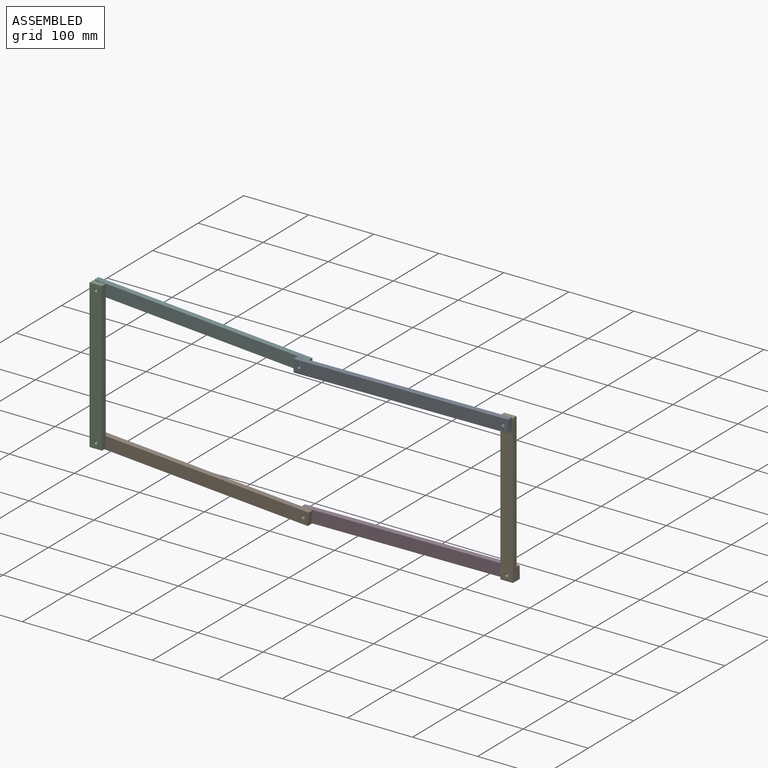
[diagram: assembled view]
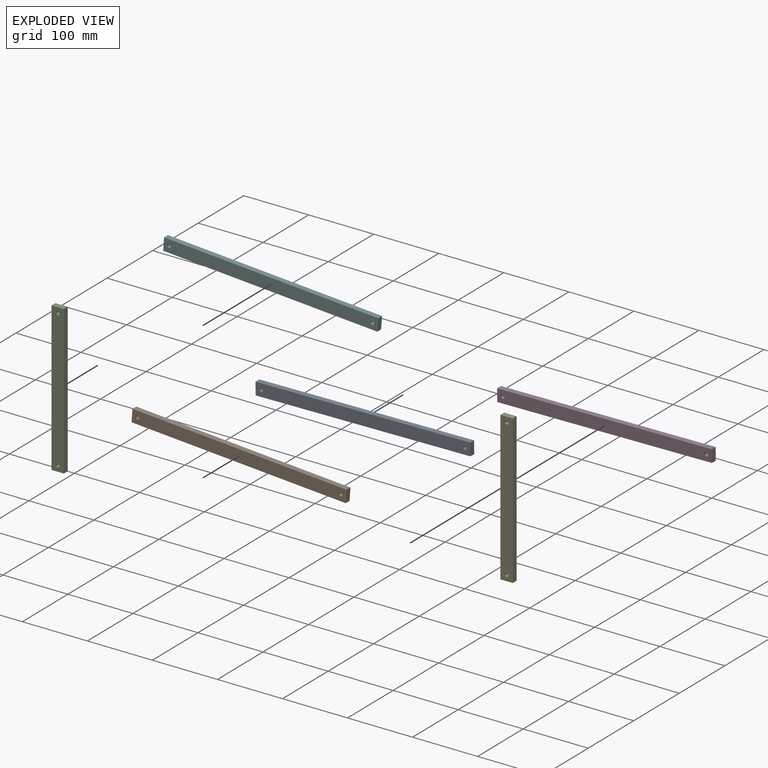
[diagram: exploded view]
GUIDED TOUR — MATED ASSEMBLY (Onshape document 28761810e7ef9c441e927997, AutoMate assembly 28761810e7ef9c441e927997_73a85dd9ed7e7506a6180d0a_4f3e3da0cdc9e46c7e54a4dd_default)

This assembly has 6 components, labeled P0..P5 below (a component is one placed occurrence of a part; the same part can appear more than once), held together by 6 mates. A mate is a constraint between two components; its type names the relative motion it leaves free:
  REVOLUTE — leaves rotation about the listed axis free (a hinge).
Axis/direction vectors are unit vectors and 'through' points are millimeter coordinates, both in the assembly's world frame.

MATES
  1. REVOLUTE "Revolute 5": P3 <-> P1, axis (0.000, -1.000, 0.000) through (-263.79, 29.69, -114.07) mm
  2. REVOLUTE "Revolute 1": P4 <-> P0, axis (0.000, -1.000, 0.000) through (49.63, 21.31, 101.19) mm
  3. REVOLUTE "Revolute 2": P0 <-> P5, axis (0.000, 1.000, 0.000) through (-263.79, 21.31, 97.76) mm
  4. REVOLUTE "Revolute 6": P1 <-> P2, axis (0.000, -1.000, 0.000) through (-576.37, 21.31, -90.92) mm
  5. REVOLUTE "Revolute 3": P5 <-> P2, axis (0.000, -1.000, 0.000) through (-576.37, 21.31, 120.91) mm
  6. REVOLUTE "Revolute 4": P3 <-> P4, axis (0.000, -1.000, 0.000) through (49.63, 29.69, -110.64) mm

ASSEMBLY ORDER
  1. P4 — the base component [order verified]
  2. P0 [order verified]
  3. P2 [order verified]
  4. P5 [order verified]
  5. P1 [order verified]
  6. P3 [order verified]
Order-tag legend:
  [order verified] — this step's position reverses a verified removal order: the component was checked to insert without passing through the ones already placed.

Of the 6 components, 6 carry the full construction recipe — the FeatureScript program that regenerates the part's solid from scratch; the rest are supplied as boundary geometry only.
Each toured component is shown spotlighted twice — in the assembled view, then in the exploded view, where a leader line traces a displaced component back to its assembled socket (saturated green if recipe-attached, orange if geometry-only; every other component desaturated gray) — followed by its recipe or geometry summary and the mates that hold it.
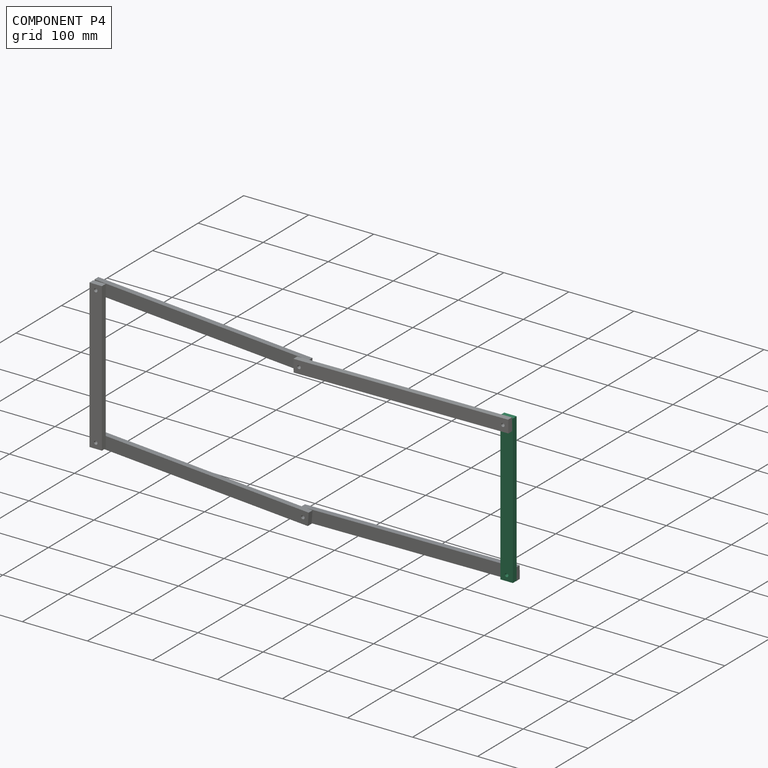
[diagram: component P4 — assembled]
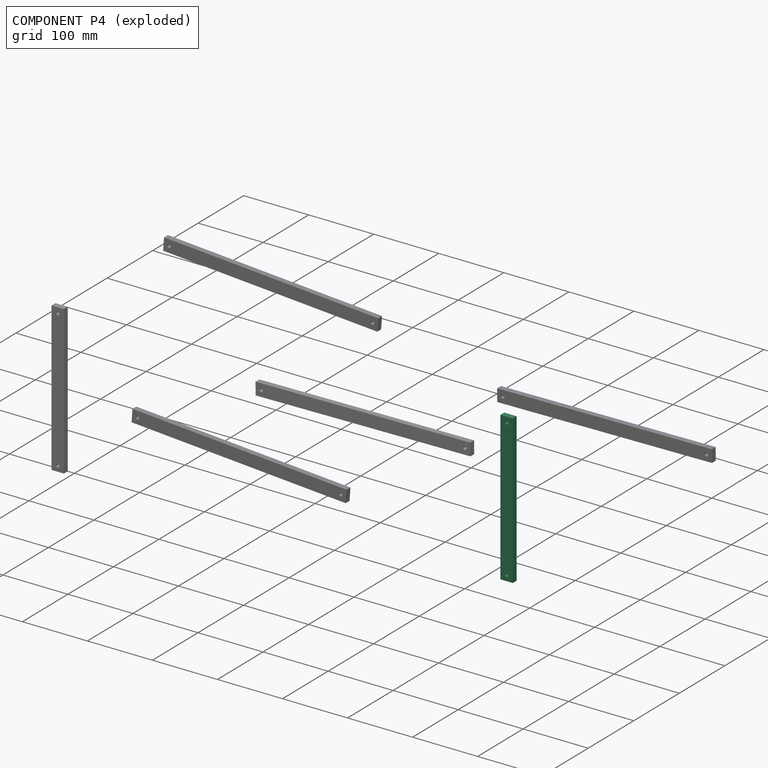
[diagram: component P4 — exploded]
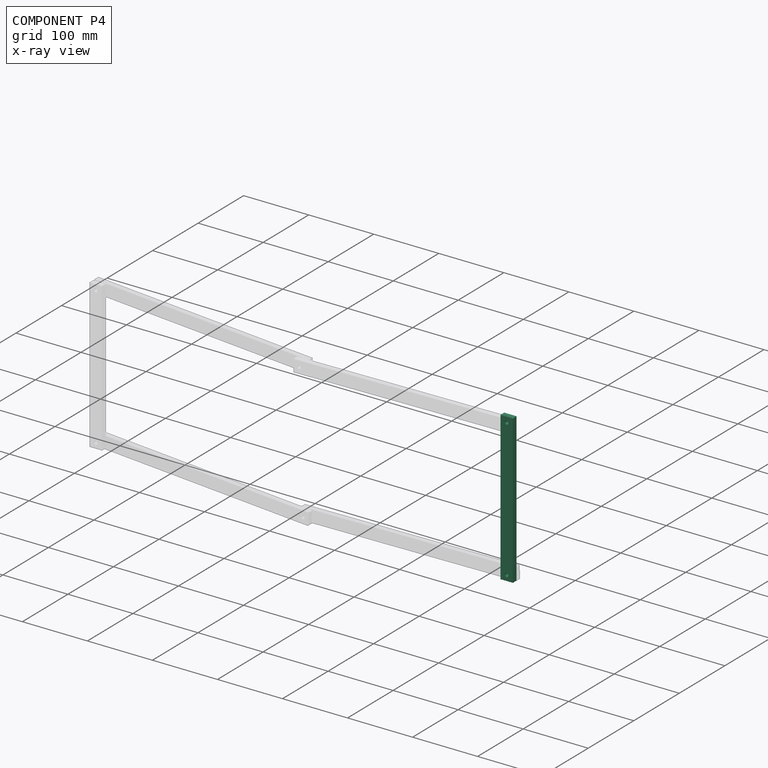
[diagram: component P4 — x-ray view]
COMPONENT P4 — same part as P2 (CADFS 00447792); its construction recipe is shown at P2.
Held by: REVOLUTE mate "Revolute 1" to P0; REVOLUTE mate "Revolute 4" to P3.
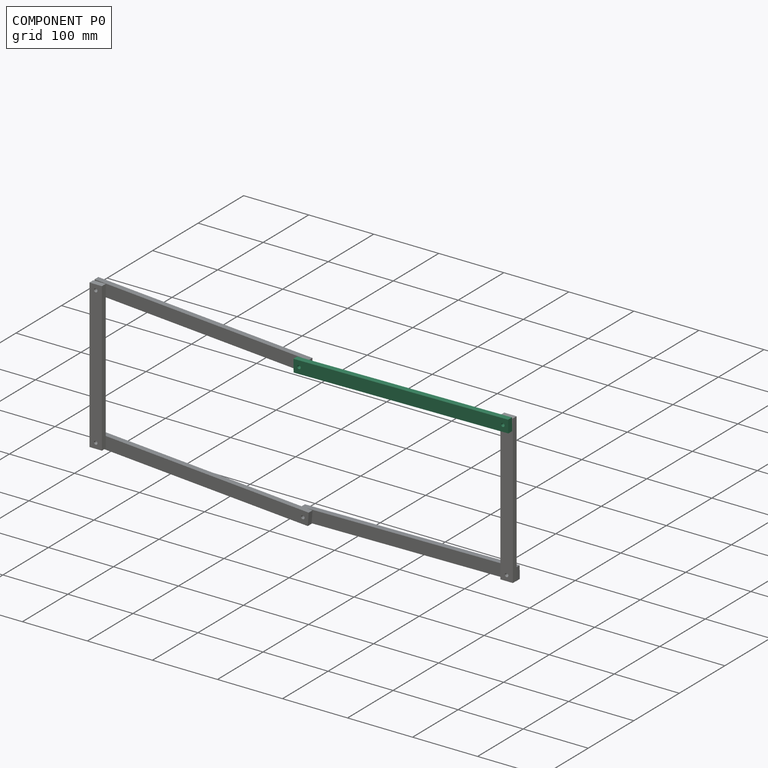
[diagram: component P0 — assembled]
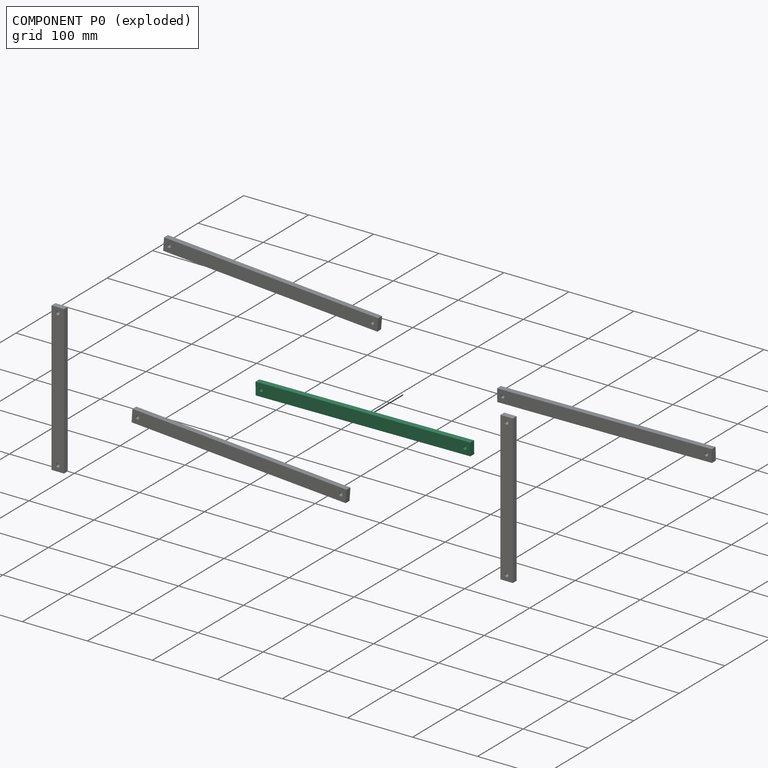
[diagram: component P0 — exploded]
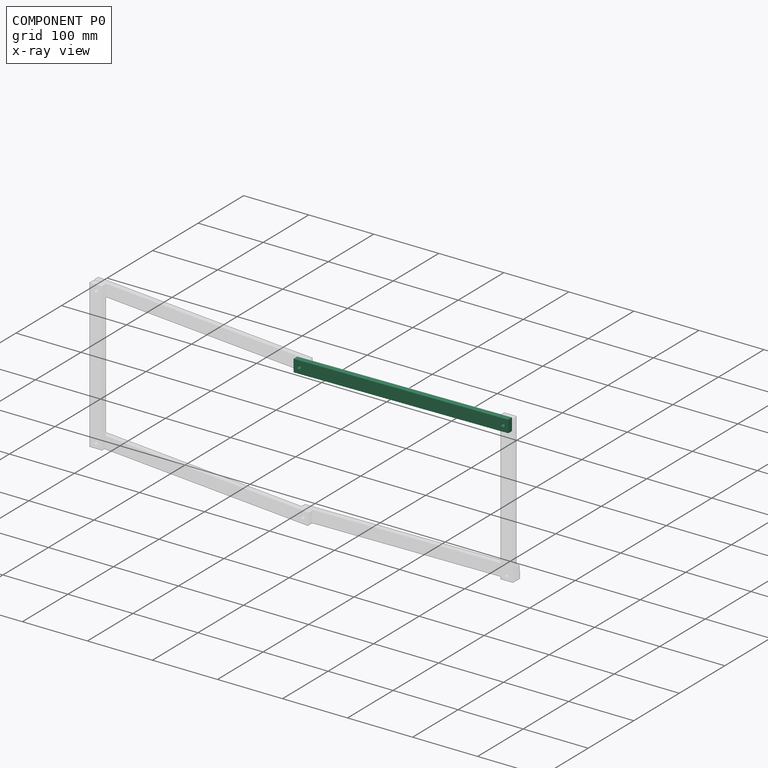
[diagram: component P0 — x-ray view]
COMPONENT P0 — recipe-attached (CADFS 00447789, mesh-verified: the recipe's output STEP matches this component's geometry to below the mesh-comparison resolution (tessellation chordal tolerance ~0.496 mm)).
Held by: REVOLUTE mate "Revolute 1" to P4; REVOLUTE mate "Revolute 2" to P5.
Construction recipe (FeatureScript — the CAD program that rebuilds this solid; sketch coordinates are in the units given by the * unit suffixes, e.g. mm):

FeatureScript 1540;
import(path : "onshape/std/geometry.fs", version : "1540.0");
import(path : "onshape/std/common.fs", version : "1540.0");
const mm = millimeter;
const VERTEX = EntityType.VERTEX;
const EDGE = EntityType.EDGE;
const FACE = EntityType.FACE;
const BODY = EntityType.BODY;
function v(x, y){return vector(x, y);}
function OD(order){return orderDisambiguation(order);}
function OSD(set){return originalSetDisambiguation(set);}
function TD(topology){return topologyDisambiguation(topology);}
function TDD(query){return trueDependencyDisambiguation(query);}
function sQuery(a, b, c) {return sketchEntityQuery(a, b, c);}

annotation { "Feature Type Name" : "Feature", "Feature Type Description" : "" }
export const myFeature = defineFeature(function(context is Context, id is Id, definition is map)
    precondition{}
    {
        {
            var Q0;
            Q0=qCreatedBy(makeId("Front.planeOp"),FACE);
            var sketch = newSketch(context, id + "F0", { "sketchPlane" : qUnion([Q0])});
            skLineSegment(sketch, "E0.bottom", {"start": v(165.1, -9.52) * mm, "end": v(-165.1, -9.52) * mm});
            skLineSegment(sketch, "E0.top", {"start": v(165.1, 9.53) * mm, "end": v(-165.1, 9.53) * mm});
            skLineSegment(sketch, "E0.left", {"start": v(165.1, -9.52) * mm, "end": v(165.1, 9.53) * mm});
            skLineSegment(sketch, "E0.right", {"start": v(-165.1, -9.52) * mm, "end": v(-165.1, 9.53) * mm});
            skPoint(sketch, "E0.middle", {"position": v(0, 0) * mm});
            skPoint(sketch, "E1", {"position": v(-156.72, 0) * mm});
            skPoint(sketch, "E2", {"position": v(156.72, 0) * mm});
            skSolve(sketch);
        }
        {
            var Q0;
            Q0=makeQuery(id+"F0.imprint","IMPRINT",FACE,{"disambiguationData":[TD([[makeQuery(id+"F0.imprint","IMPRINT",EDGE,{"derivedFrom":sQuery(id+"F0.wireOp",EDGE,"E0.bottom")}),-1.0]])]});
            extrude(context, id + "F1", {"entities" : qUnion([Q0]), "depth" : 8.38 * mm, "symmetric" : true});
        }
        {
            var Q0;
            Q0=sQuery(id+"F0.wireOp",VERTEX,"E1");
            var Q1;
            Q1=sQuery(id+"F0.wireOp",VERTEX,"E2");
            var Q2;
            Q2=makeQuery(id+"F1.opExtrude","SWEPT_BODY",BODY,{"disambiguationData":[OSD([sQuery(id+"F0.wireOp",EDGE,"E0.bottom"),sQuery(id+"F0.wireOp",EDGE,"E0.top"),sQuery(id+"F0.wireOp",EDGE,"E0.left"),sQuery(id+"F0.wireOp",EDGE,"E0.right")])]});
            hole(context, id + "F2", {"style" : HoleStyle.SIMPLE, "endStyle" : HoleEndStyle.THROUGH, "standardTappedOrClearance" : lookupTablePath({ "standard" : "ANSI", "size" : "#4 (0.2)", "type" : "Drilled" }), "standardBlindInLast" : lookupTablePath({ "standard" : "ANSI", "size" : "#4", "type" : "Drilled" }), "holeDiameter" : 5.3 * mm, "isTappedThrough" : true, "tappedDepth" : 12.7 * mm, "tapClearance" : 3, "startFromSketch" : true, "locations" : qUnion([Q0, Q1]), "scope" : qUnion([Q2])});
        }
        {
            var Q0;
            Q0=sQuery(id+"F0.wireOp",VERTEX,"E1");
            var Q1;
            Q1=sQuery(id+"F0.wireOp",VERTEX,"E2");
            var Q2;
            Q2=makeQuery(id+"F1.opExtrude","SWEPT_BODY",BODY,{"disambiguationData":[OSD([sQuery(id+"F0.wireOp",EDGE,"E0.bottom"),sQuery(id+"F0.wireOp",EDGE,"E0.top"),sQuery(id+"F0.wireOp",EDGE,"E0.left"),sQuery(id+"F0.wireOp",EDGE,"E0.right")])]});
            hole(context, id + "F3", {"style" : HoleStyle.SIMPLE, "endStyle" : HoleEndStyle.THROUGH, "oppositeDirection" : true, "standardTappedOrClearance" : lookupTablePath({ "standard" : "ANSI", "size" : "#4 (0.2)", "type" : "Drilled" }), "standardBlindInLast" : lookupTablePath({ "standard" : "ANSI", "size" : "#4", "type" : "Drilled" }), "holeDiameter" : 5.3 * mm, "isTappedThrough" : true, "tappedDepth" : 12.7 * mm, "tapClearance" : 3, "startFromSketch" : true, "locations" : qUnion([Q0, Q1]), "scope" : qUnion([Q2])});
        }
    });
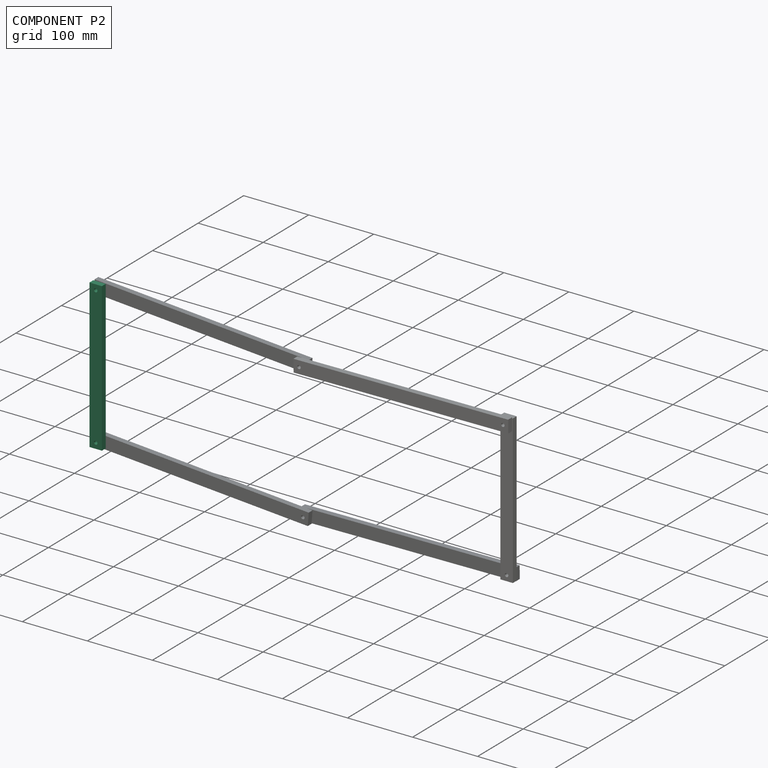
[diagram: component P2 — assembled]
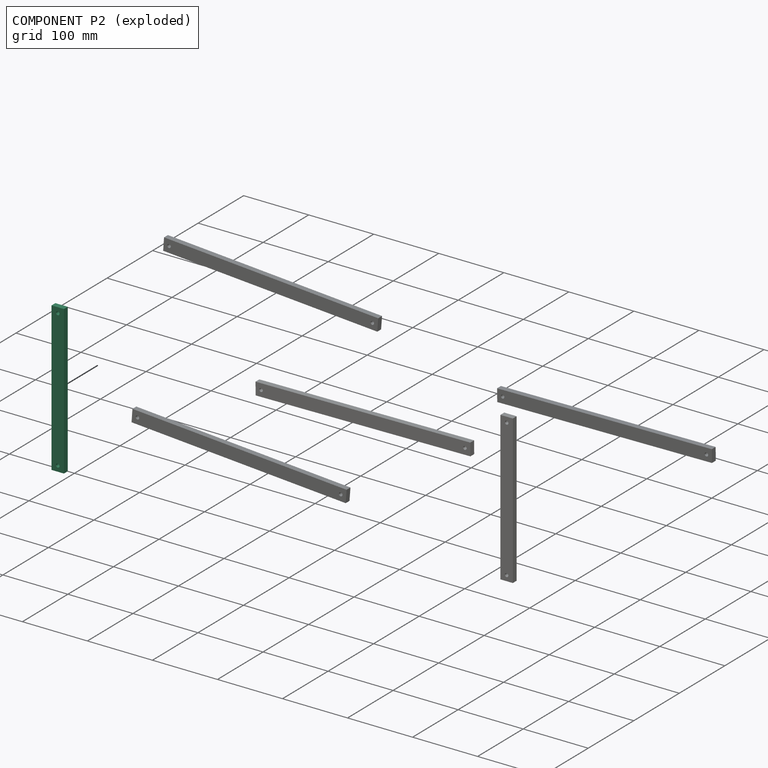
[diagram: component P2 — exploded]
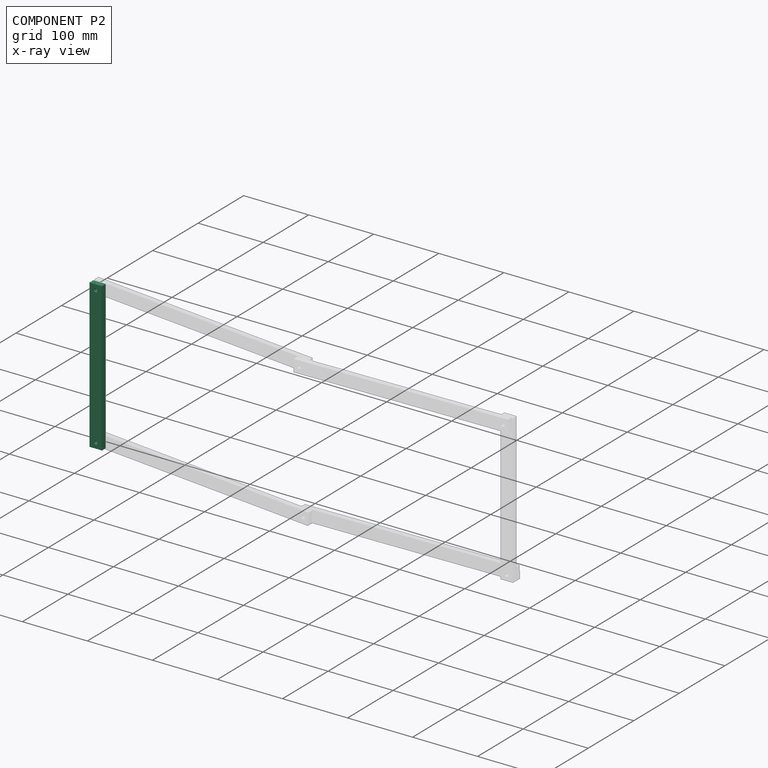
[diagram: component P2 — x-ray view]
COMPONENT P2 — recipe-attached (CADFS 00447792, mesh-verified: the recipe's output STEP matches this component's geometry to below the mesh-comparison resolution (tessellation chordal tolerance ~0.344 mm)).
Held by: REVOLUTE mate "Revolute 6" to P1; REVOLUTE mate "Revolute 3" to P5.
Construction recipe (FeatureScript — the CAD program that rebuilds this solid; sketch coordinates are in the units given by the * unit suffixes, e.g. mm):

FeatureScript 1540;
import(path : "onshape/std/geometry.fs", version : "1540.0");
import(path : "onshape/std/common.fs", version : "1540.0");
const mm = millimeter;
const VERTEX = EntityType.VERTEX;
const EDGE = EntityType.EDGE;
const FACE = EntityType.FACE;
const BODY = EntityType.BODY;
function v(x, y){return vector(x, y);}
function OD(order){return orderDisambiguation(order);}
function OSD(set){return originalSetDisambiguation(set);}
function TD(topology){return topologyDisambiguation(topology);}
function TDD(query){return trueDependencyDisambiguation(query);}
function sQuery(a, b, c) {return sketchEntityQuery(a, b, c);}

annotation { "Feature Type Name" : "Feature", "Feature Type Description" : "" }
export const myFeature = defineFeature(function(context is Context, id is Id, definition is map)
    precondition{}
    {
        {
            var Q0;
            Q0=qCreatedBy(makeId("Front.planeOp"),FACE);
            var sketch = newSketch(context, id + "F0", { "sketchPlane" : qUnion([Q0])});
            skLineSegment(sketch, "E0.bottom", {"start": v(9.52, 114.3) * mm, "end": v(-9.53, 114.3) * mm});
            skLineSegment(sketch, "E0.top", {"start": v(9.53, -114.3) * mm, "end": v(-9.52, -114.3) * mm});
            skLineSegment(sketch, "E0.left", {"start": v(9.52, 114.3) * mm, "end": v(9.53, -114.3) * mm});
            skLineSegment(sketch, "E0.right", {"start": v(-9.53, 114.3) * mm, "end": v(-9.52, -114.3) * mm});
            skPoint(sketch, "E0.middle", {"position": v(0, 0) * mm});
            skPoint(sketch, "E1", {"position": v(0, 105.92) * mm});
            skPoint(sketch, "E2", {"position": v(0, -105.92) * mm});
            skSolve(sketch);
        }
        {
            var Q0;
            Q0=makeQuery(id+"F0.imprint","IMPRINT",FACE,{"disambiguationData":[TD([[makeQuery(id+"F0.imprint","IMPRINT",EDGE,{"derivedFrom":sQuery(id+"F0.wireOp",EDGE,"E0.bottom")}),1.0]])]});
            extrude(context, id + "F1", {"entities" : qUnion([Q0]), "depth" : 8.38 * mm, "symmetric" : true});
        }
        {
            var Q0;
            Q0=sQuery(id+"F0.wireOp",VERTEX,"E1");
            var Q1;
            Q1=sQuery(id+"F0.wireOp",VERTEX,"E2");
            var Q2;
            Q2=makeQuery(id+"F1.opExtrude","SWEPT_BODY",BODY,{"disambiguationData":[OSD([sQuery(id+"F0.wireOp",EDGE,"E0.bottom"),sQuery(id+"F0.wireOp",EDGE,"E0.top"),sQuery(id+"F0.wireOp",EDGE,"E0.left"),sQuery(id+"F0.wireOp",EDGE,"E0.right")])]});
            hole(context, id + "F2", {"style" : HoleStyle.SIMPLE, "endStyle" : HoleEndStyle.THROUGH, "standardTappedOrClearance" : lookupTablePath({ "standard" : "ANSI", "size" : "#4 (0.2)", "type" : "Drilled" }), "standardBlindInLast" : lookupTablePath({ "standard" : "ANSI", "size" : "#4", "type" : "Drilled" }), "holeDiameter" : 5.3 * mm, "isTappedThrough" : true, "tappedDepth" : 12.7 * mm, "tapClearance" : 3, "startFromSketch" : true, "locations" : qUnion([Q0, Q1]), "scope" : qUnion([Q2])});
        }
        {
            var Q0;
            Q0=sQuery(id+"F0.wireOp",VERTEX,"E1");
            var Q1;
            Q1=sQuery(id+"F0.wireOp",VERTEX,"E2");
            var Q2;
            Q2=makeQuery(id+"F1.opExtrude","SWEPT_BODY",BODY,{"disambiguationData":[OSD([sQuery(id+"F0.wireOp",EDGE,"E0.bottom"),sQuery(id+"F0.wireOp",EDGE,"E0.top"),sQuery(id+"F0.wireOp",EDGE,"E0.left"),sQuery(id+"F0.wireOp",EDGE,"E0.right")])]});
            hole(context, id + "F3", {"style" : HoleStyle.SIMPLE, "endStyle" : HoleEndStyle.THROUGH, "oppositeDirection" : true, "standardTappedOrClearance" : lookupTablePath({ "standard" : "ANSI", "size" : "#4 (0.2)", "type" : "Drilled" }), "standardBlindInLast" : lookupTablePath({ "standard" : "ANSI", "size" : "#4", "type" : "Drilled" }), "holeDiameter" : 5.3 * mm, "isTappedThrough" : true, "tappedDepth" : 12.7 * mm, "tapClearance" : 3, "startFromSketch" : true, "locations" : qUnion([Q0, Q1]), "scope" : qUnion([Q2])});
        }
    });
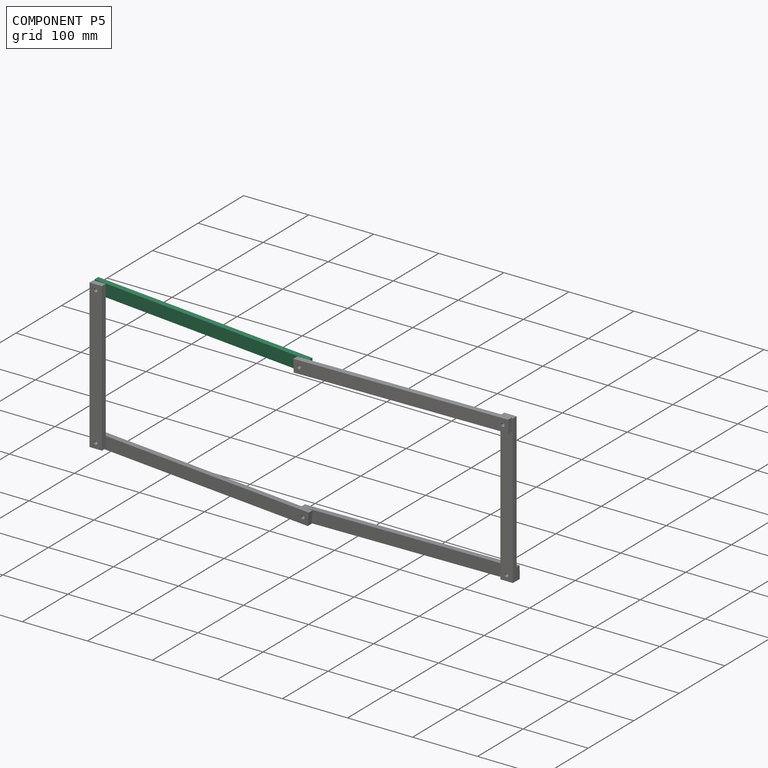
[diagram: component P5 — assembled]
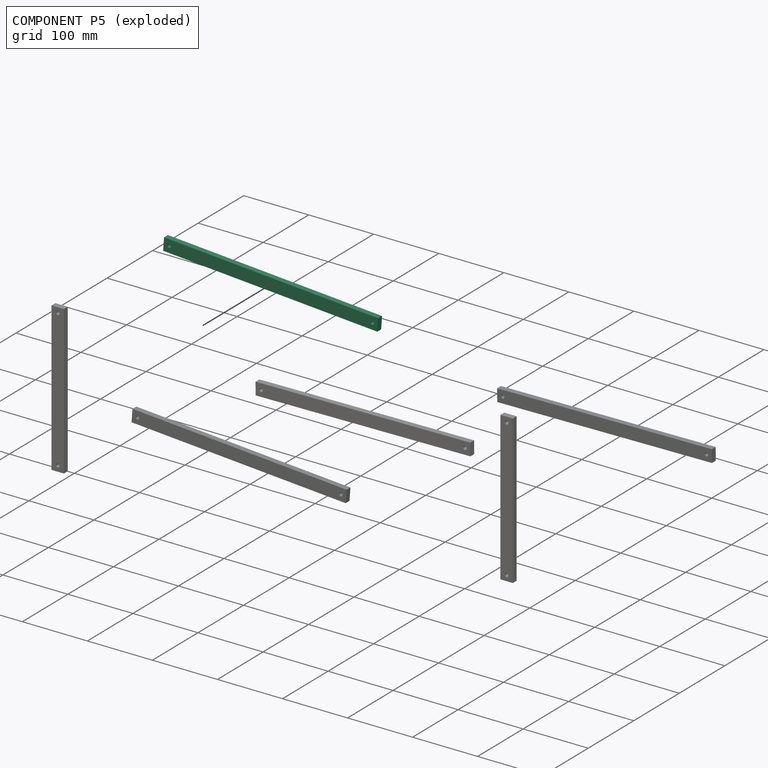
[diagram: component P5 — exploded]
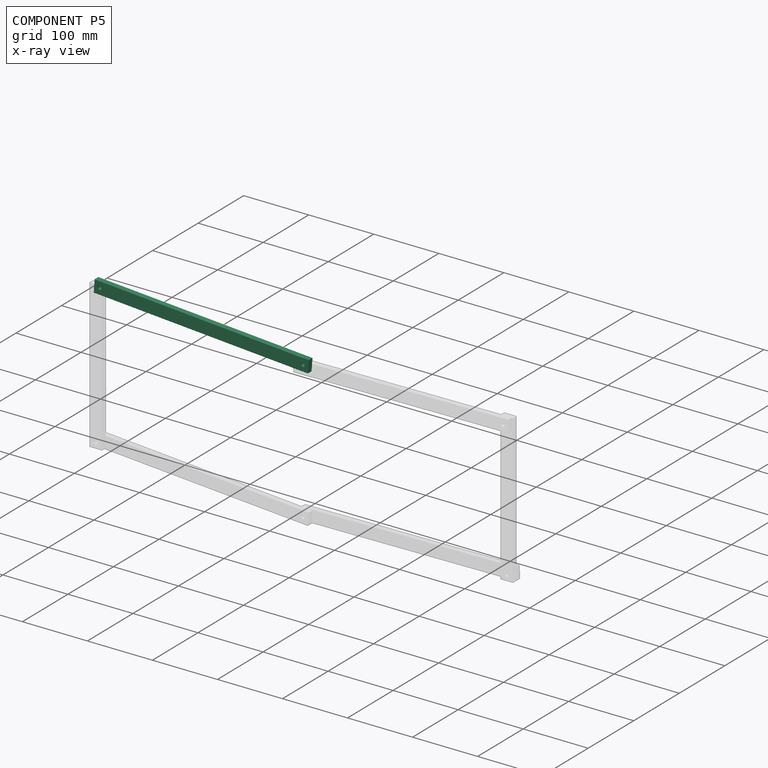
[diagram: component P5 — x-ray view]
COMPONENT P5 — same part as P0 (CADFS 00447789); its construction recipe is shown at P0.
Held by: REVOLUTE mate "Revolute 2" to P0; REVOLUTE mate "Revolute 3" to P2.
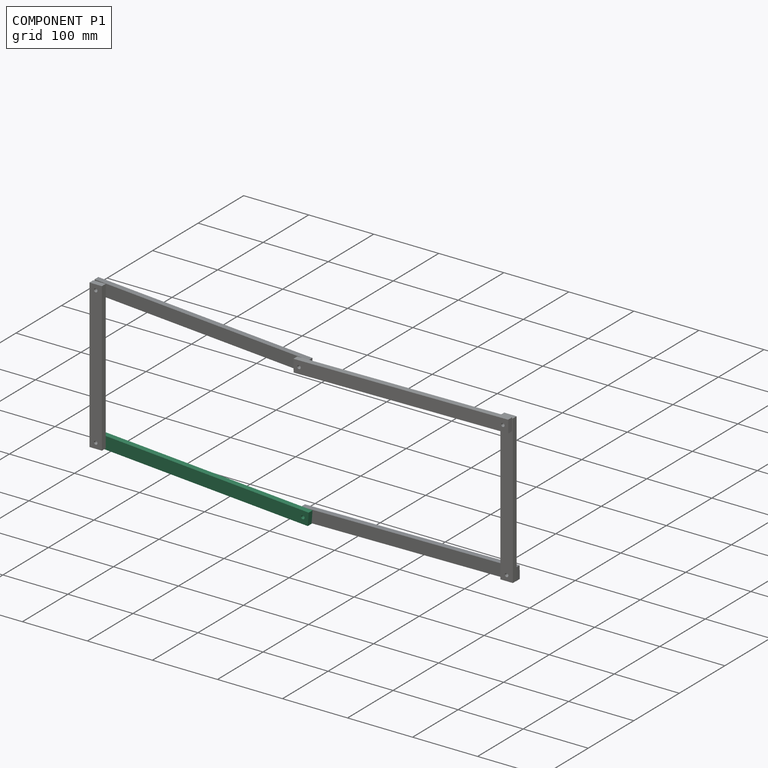
[diagram: component P1 — assembled]
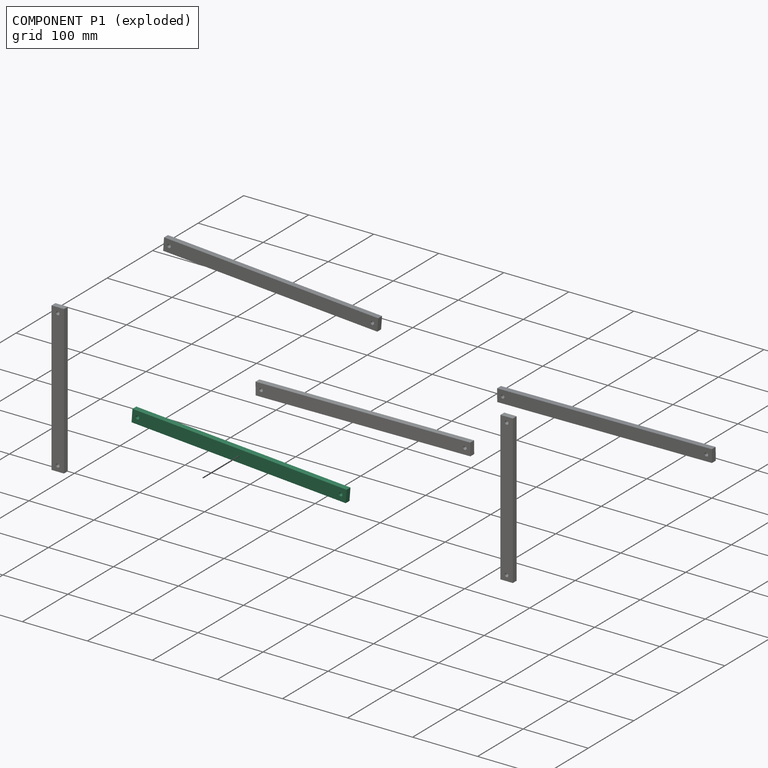
[diagram: component P1 — exploded]
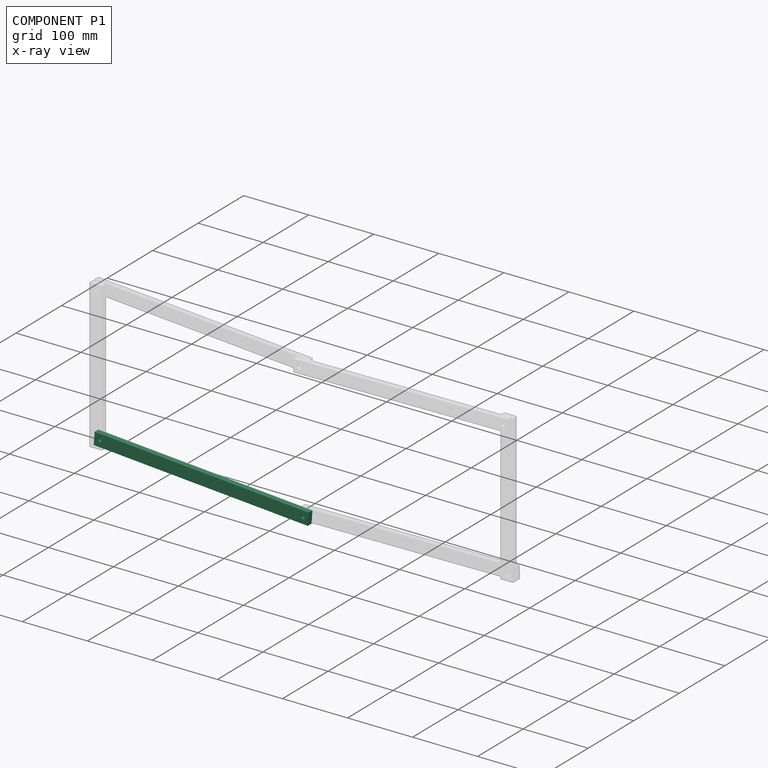
[diagram: component P1 — x-ray view]
COMPONENT P1 — same part as P0 (CADFS 00447789); its construction recipe is shown at P0.
Held by: REVOLUTE mate "Revolute 5" to P3; REVOLUTE mate "Revolute 6" to P2.
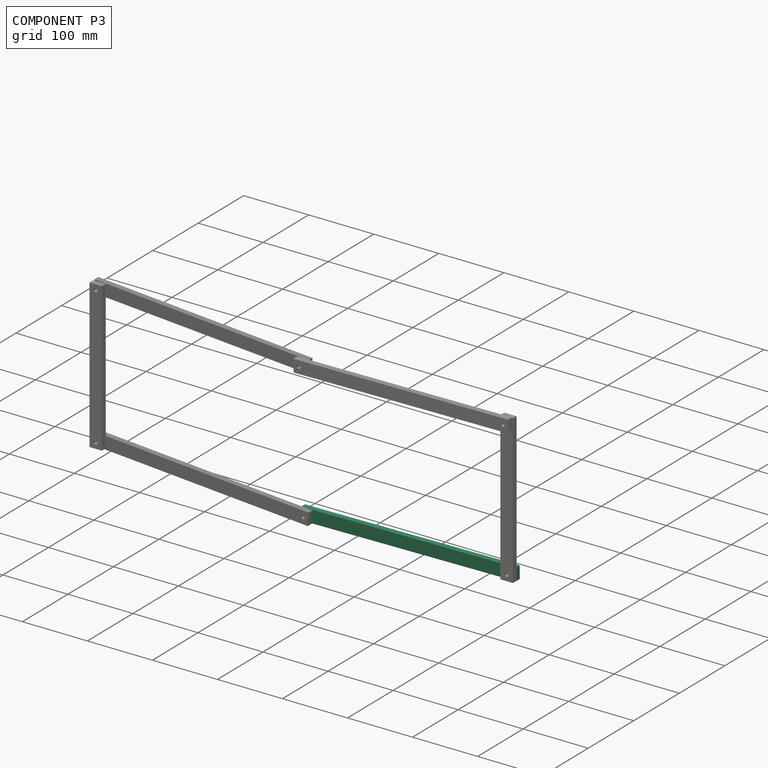
[diagram: component P3 — assembled]
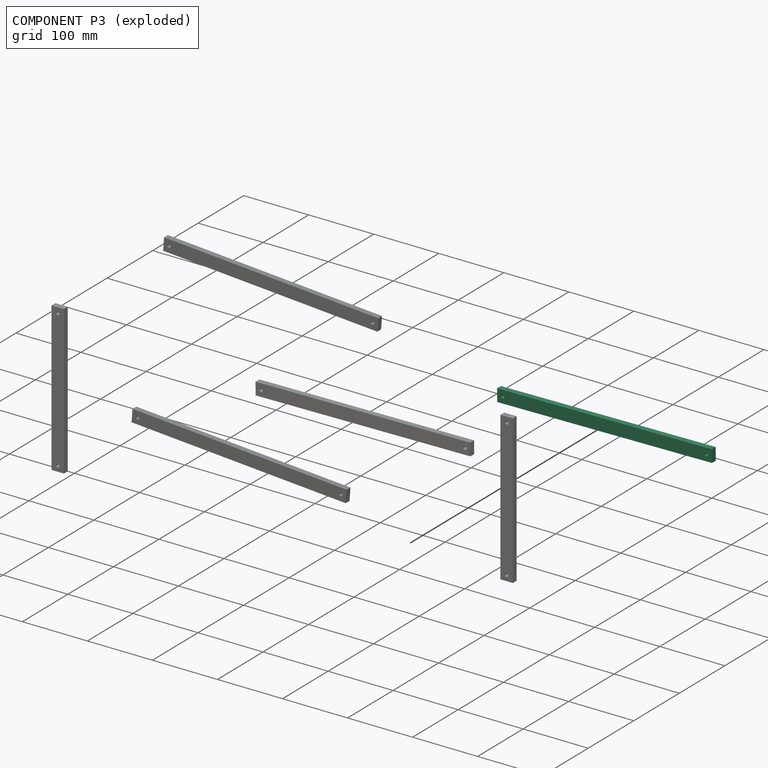
[diagram: component P3 — exploded]
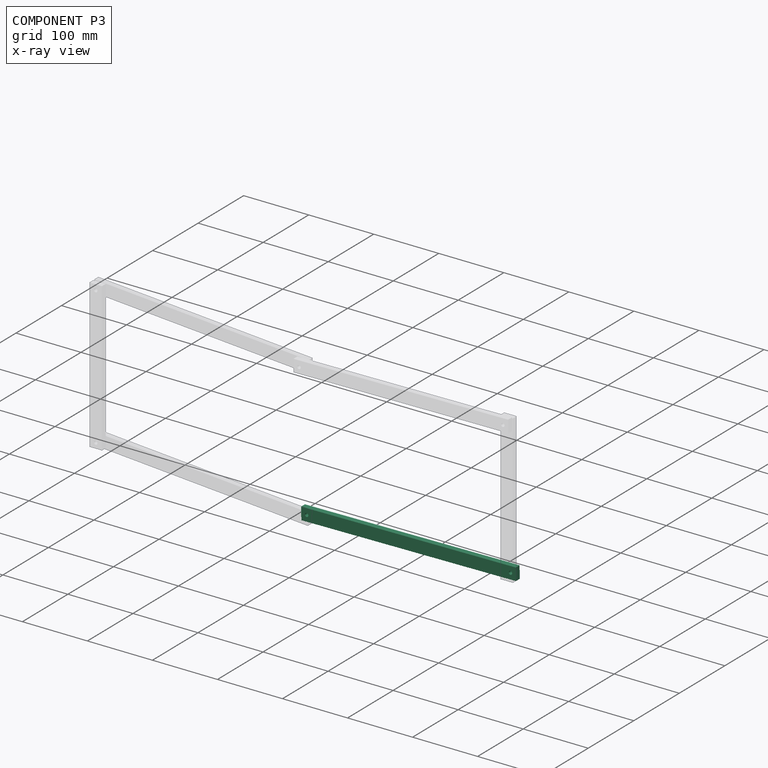
[diagram: component P3 — x-ray view]
COMPONENT P3 — same part as P0 (CADFS 00447789); its construction recipe is shown at P0.
Held by: REVOLUTE mate "Revolute 5" to P1; REVOLUTE mate "Revolute 4" to P4.
PROVENANCE & LICENSES
Assembly (occurrences, transforms, mates, per-part STEP geometry): AutoMate dataset, Zenodo record 7776208, CC0.
Construction recipes: CADFS (HuggingFace VladPyatov/CADFS, CC-BY-4.0, layered over the ABC dataset), FeatureScript reconstruction programs keyed by ABC model id.
Join: ABC meta listings map ABC model id -> Onshape documentId; within a shared document, parts are matched by geometric signature (bounding-box dims + volume at 0.1% relative tolerance, exact B-rep face/solid counts).
Verification: 6 of this assembly's 6 components carry a recipe attachment, and every attachment is mesh-verified: the CADFS STEP and the AutoMate member STEP were compared as meshes in their shared local frame (symmetric sampled-point-to-mesh distance); worst across the 6 attachments: below the mesh-comparison resolution (tessellation chordal tolerance ~0.496 mm) on a 331 mm part.
Renders: orthographic iso camera (az 35 / el 25); the floor grid conveys scale (grid pitch printed in each image; no ruler). In the exploded view each component is displaced by its stored offset vector: the offsets alone carry the explosion direction (mate normal/axis signs are not orientation cues and do not encode it), and separation distances are assigned per mate-chain, not proportionally to assembly-order depth.
